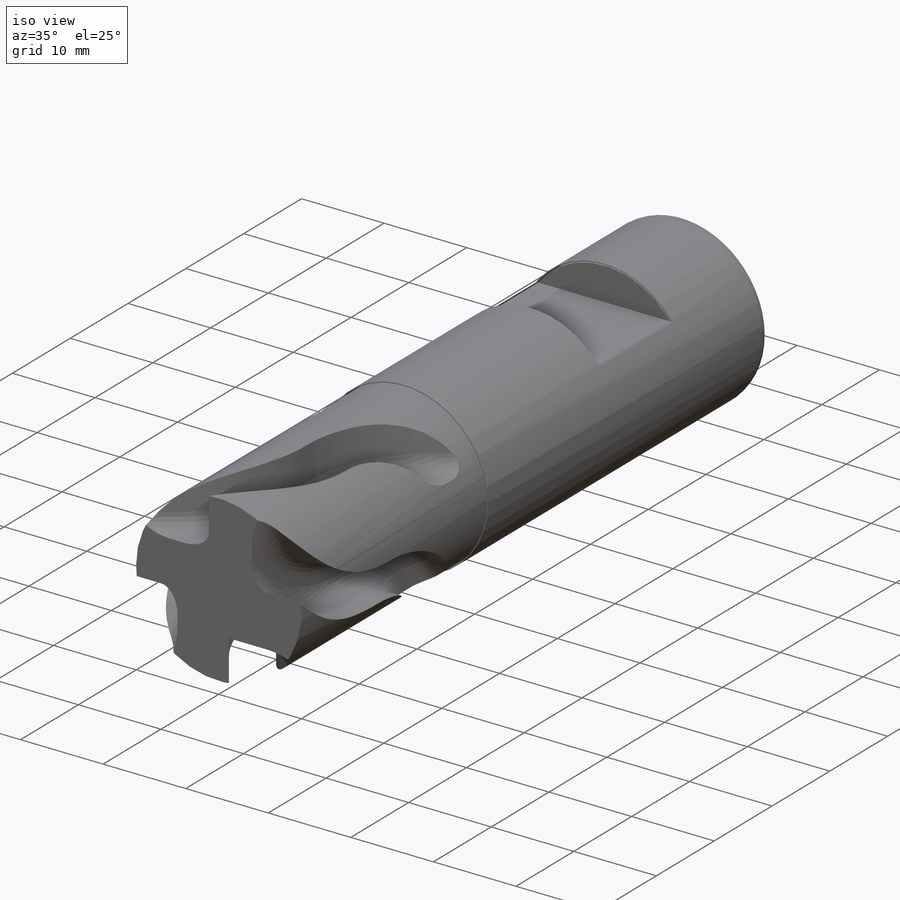
[diagram: iso view]
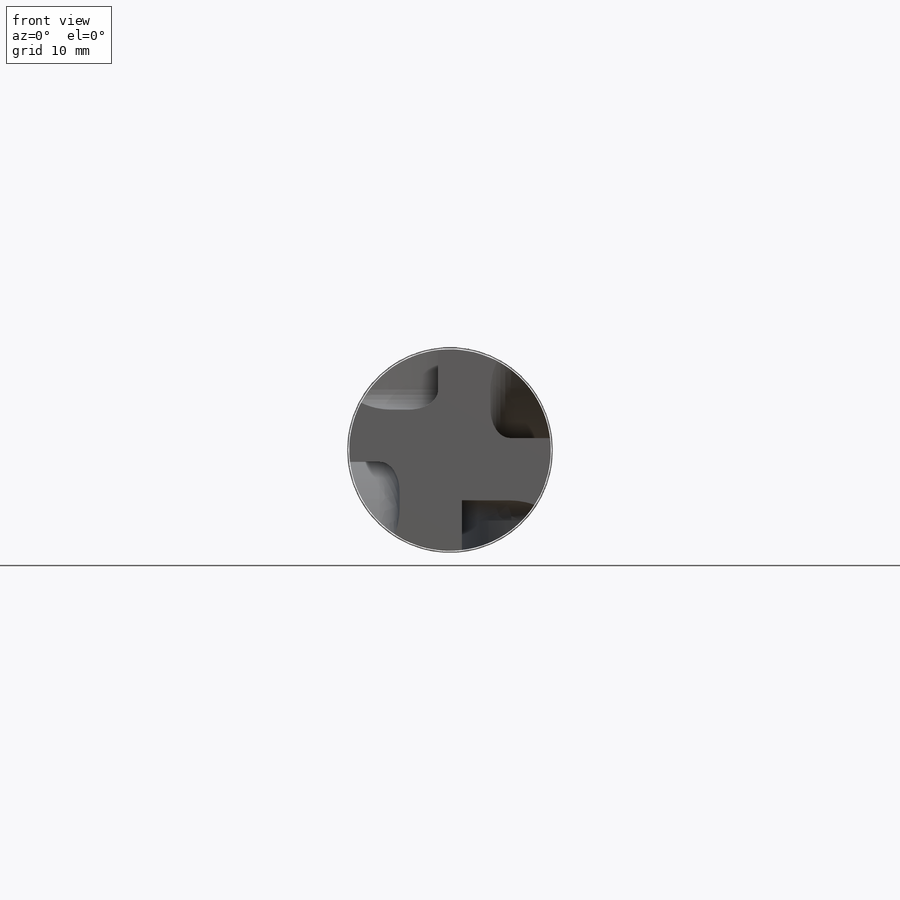
[diagram: front view]
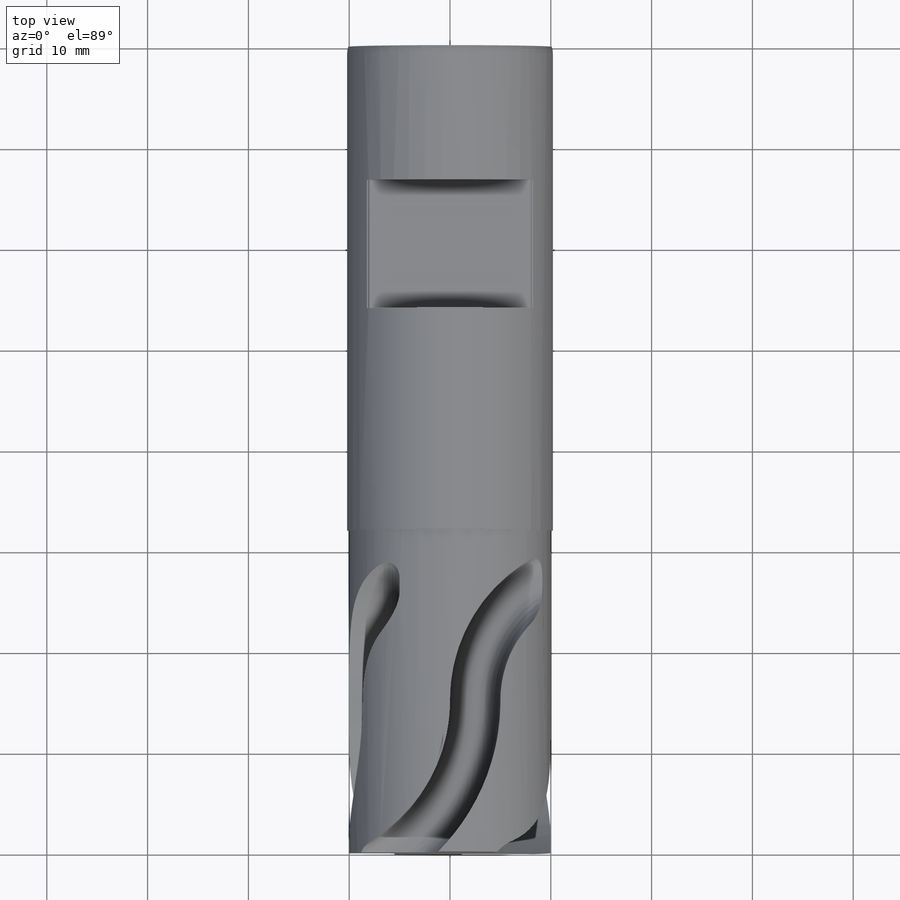
[diagram: top view]
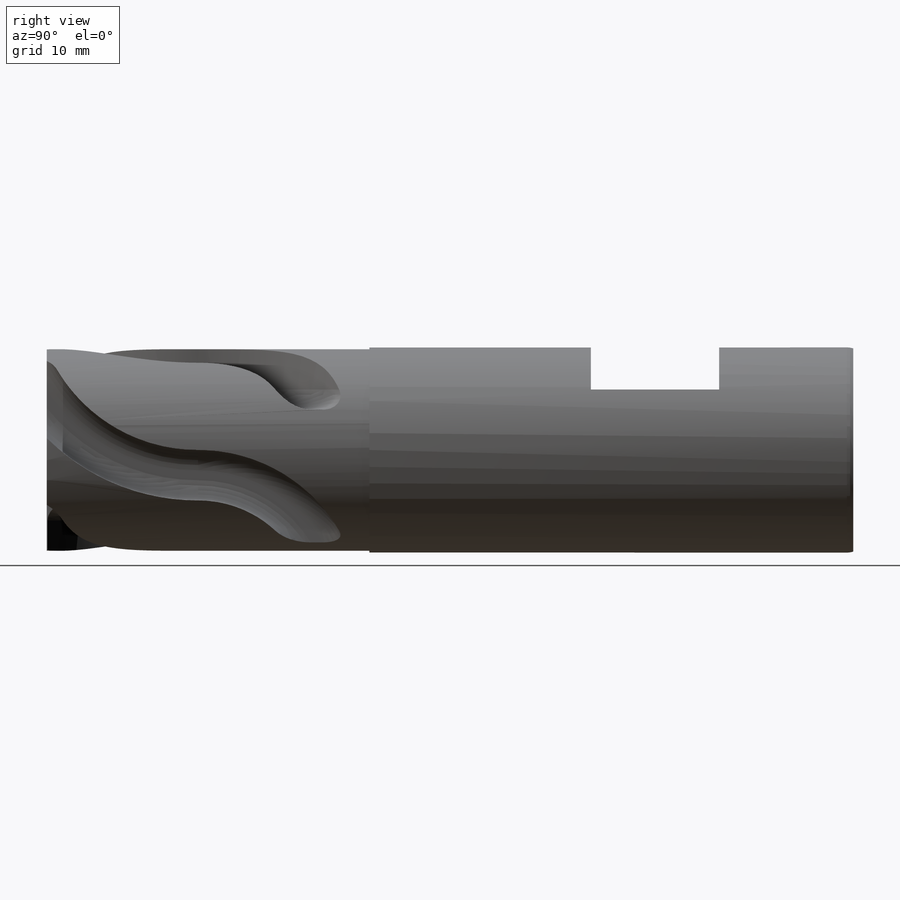
[diagram: right view]
SOLIDWORKS PART (.sldprt)
format: sldprt  version: not decoded by parser v0  size: 483,840 bytes
history: native  units: mm
features: sketch x8, plane x6, cut_extrude x6, fillet x6, extrude x2, material x1 (+16 scaffold rows collapsed)
feature tree (45):
  scaffold x16  (default folders/planes/origin — collapsed)
  material  "Material <not specified>"
  sketch  "Sketch1"  dims[D1=20.0mm]
  extrude  "Boss-Extrude1"  Depth=80mm
  plane  "Plane1"  Offset=10mm
  sketch  "Sketch3"  dims[D2=16.19mm D3=16.19mm D1=30.0mm D4=5.0mm]
  cut_extrude  "Cut-Extrude1"  Depth=6mm
  plane  "Plane3"  Offset=10mm
  sketch  "Sketch7"  dims[D2=16.18mm D3=16.18mm D1=30.0mm D4=5.0mm]
  cut_extrude  "Cut-Extrude2"  Depth=6mm
  plane  "Plane4"  Offset=10mm
  sketch  "Sketch8"  dims[D2=16.18mm D3=16.18mm D1=30.0mm D4=5.0mm]
  cut_extrude  "Cut-Extrude4"  Depth=10mm
  plane  "Plane5"  Offset=10mm
  sketch  "Sketch9"  dims[D2=16.18mm D3=16.18mm D1=30.0mm D4=5.0mm]
  cut_extrude  "Cut-Extrude5"  Depth=5mm
  plane  "Plane6"  Offset=80mm
  sketch  "Sketch11"
  cut_extrude  "Cut-Extrude6"  Depth=0.09mm
  fillet  "Fillet1"  Radius=2mm
  fillet  "Fillet2"  Radius=2mm
  fillet  "Fillet3"  Radius=2mm
  fillet  "Fillet4"  Radius=2mm
  fillet  "Fillet5"  Radius=2mm
  sketch  "Sketch20"  dims[D1=20.2mm D2=20.4mm]
  extrude  "Boss-Extrude4"  Depth=48mm
  plane  "Plane11"  Offset=10mm
  sketch  "Sketch21"
  cut_extrude  "Cut-Extrude9"  Depth=8mm
  fillet  "Fillet6"  Radius=2mm
decode coverage: 20 of 22 modeling features carry decoded parameters
note: suppression state not decoded; provenance and decode notes live in map.json
